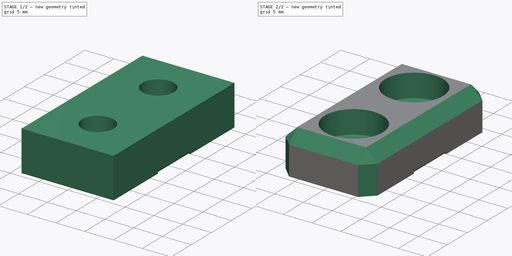
[diagram: build sequence overview — one tinted view per stage of 2, left to right]
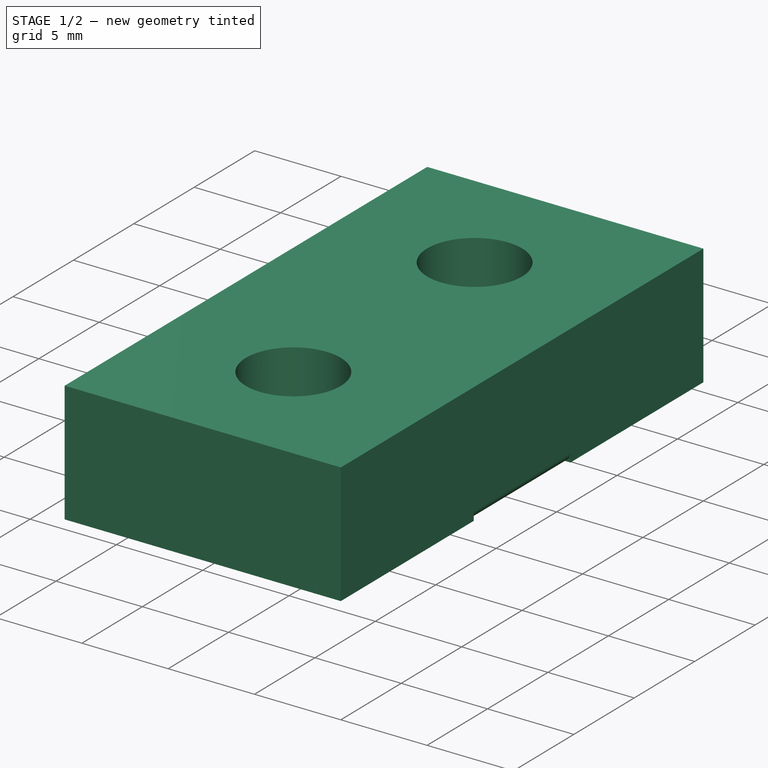
[diagram: stage 1 of 2 — iso view after this stage's code; geometry added in this stage tinted green]
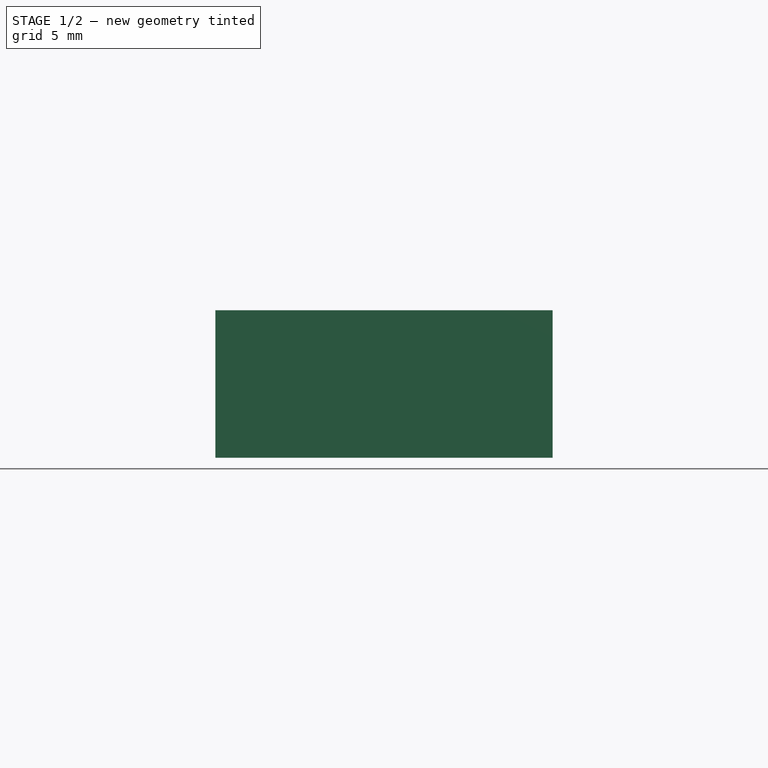
[diagram: stage 1 of 2 — front view after this stage's code; geometry added in this stage tinted green]
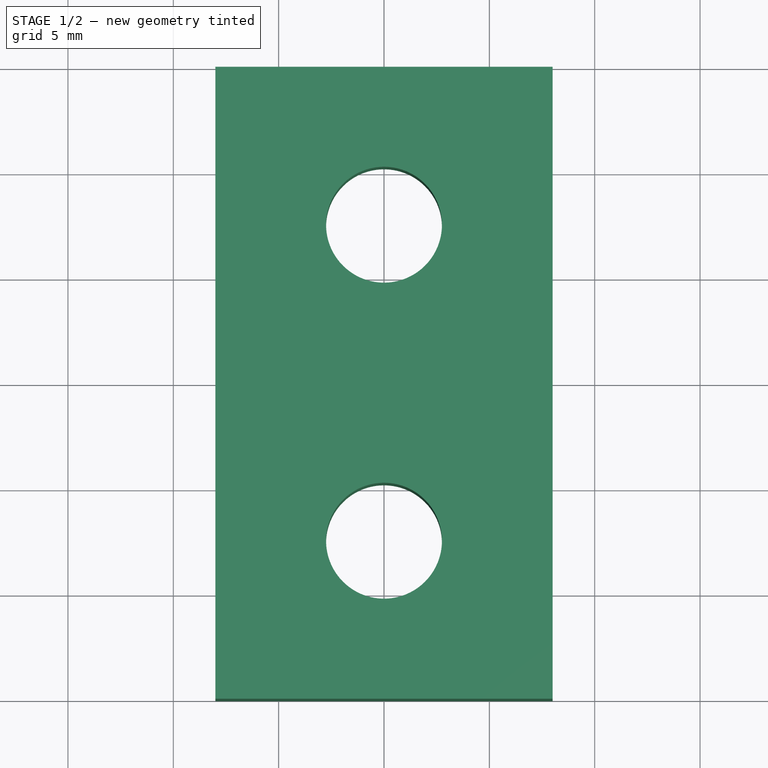
[diagram: stage 1 of 2 — top view after this stage's code; geometry added in this stage tinted green]
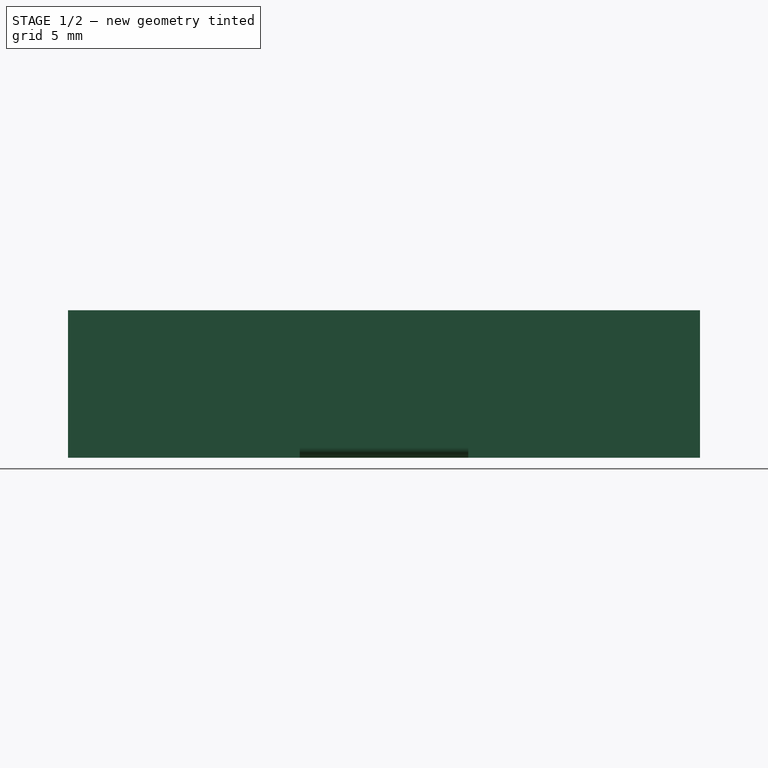
[diagram: stage 1 of 2 — right view after this stage's code; geometry added in this stage tinted green]
FCSTD DOCUMENT  (FreeCAD 0.19R24267 +148 (Git))
Label: belt-clamp
License: All rights reserved
LicenseURL: http://en.wikipedia.org/wiki/All_rights_reserved
objects: Sketcher::SketchObject×3, PartDesign::Pocket×2, PartDesign::Pad×1, PartDesign::Chamfer×1, PartDesign::Plane×1, PartDesign::Body×1
note: 13 computed .brp shape members not serialized (recipe doc carries the construction recipe); baked Part::Feature solids carry a one-line shape summary decoded from their .brp

FEATURE [Sketcher::SketchObject] Sketch
  FullyConstrained = true
  MapMode = 5
  Support = -> [XY_Plane]
  sketch-geometry (6):
    g0: LineSegment StartX=-8 StartY=15 StartZ=0 EndX=8 EndY=15 EndZ=0
    g1: LineSegment StartX=8 StartY=15 StartZ=0 EndX=8 EndY=-15 EndZ=0
    g2: LineSegment StartX=8 StartY=-15 StartZ=0 EndX=-8 EndY=-15 EndZ=0
    g3: LineSegment StartX=-8 StartY=-15 StartZ=0 EndX=-8 EndY=15 EndZ=0
    g4: Circle CenterX=0 CenterY=7.5 CenterZ=0 NormalX=0 NormalY=0 NormalZ=1 AngleXU=0 Radius=2.75
    g5: Circle CenterX=0 CenterY=-7.5 CenterZ=0 NormalX=0 NormalY=0 NormalZ=1 AngleXU=0 Radius=2.75
  constraints (15):
    c: Coincident(g0,g1)
    c: Coincident(g1,g2)
    c: Coincident(g2,g3)
    c: Coincident(g3,g0)
    c: Horizontal(g2)
    c: Vertical(g1)
    c: Symmetric(g0,g0,g-2)
    c: Symmetric(g0,g2,g-1)
    c: DistanceX(g0,g0) = 16
    c: PointOnObject(g4,g-2)
    c: DistanceY(g5,g4) = 15
    c: Diameter(g4) = 5.5
    c: Diameter(g5) = 5.5
    c: Symmetric(g4,g5,g-1)
    c: DistanceY(g3,g3) = 30
FEATURE [PartDesign::Pad] Pad
  AllowMultiFace = false
  Direction = (1,1,1)
  Length = 7
  Length2 = 100
  Profile = -> Sketch
  Type = 0
FEATURE [Sketcher::SketchObject] Sketch001
  FullyConstrained = true
  MapMode = 5
  Placement = pos=(0,0,0) rot=(1,0,0;1.5708rad)
  Support = -> [XZ_Plane]
  sketch-geometry (22):
    g0: ArcOfCircle CenterX=-7.5 CenterY=0.5 CenterZ=0 NormalX=0 NormalY=0 NormalZ=1 AngleXU=0 Radius=0.5 StartAngle=0 EndAngle=3.14159
    g1: ArcOfCircle CenterX=-6.5 CenterY=0.5 CenterZ=0 NormalX=0 NormalY=0 NormalZ=1 AngleXU=0 Radius=0.5 StartAngle=3.14159 EndAngle=6.28319
    g2: ArcOfCircle CenterX=-5.5 CenterY=0.5 CenterZ=0 NormalX=0 NormalY=0 NormalZ=1 AngleXU=0 Radius=0.5 StartAngle=0 EndAngle=3.14159
    g3: ArcOfCircle CenterX=-4.5 CenterY=0.5 CenterZ=0 NormalX=0 NormalY=0 NormalZ=1 AngleXU=0 Radius=0.5 StartAngle=3.14159 EndAngle=6.28319
    g4: ArcOfCircle CenterX=-3.5 CenterY=0.5 CenterZ=0 NormalX=0 NormalY=0 NormalZ=1 AngleXU=0 Radius=0.5 StartAngle=0 EndAngle=3.14159
    g5: ArcOfCircle CenterX=-2.5 CenterY=0.5 CenterZ=0 NormalX=0 NormalY=0 NormalZ=1 AngleXU=0 Radius=0.5 StartAngle=3.14159 EndAngle=6.28319
    g6: LineSegment StartX=-7.5 StartY=0.5 StartZ=0 EndX=0 EndY=0.5 EndZ=0
    g7: ArcOfCircle CenterX=-1.5 CenterY=0.5 CenterZ=0 NormalX=0 NormalY=0 NormalZ=1 AngleXU=0 Radius=0.5 StartAngle=0 EndAngle=3.14159
    g8: ArcOfCircle CenterX=-0.5 CenterY=0.5 CenterZ=0 NormalX=0 NormalY=0 NormalZ=1 AngleXU=0 Radius=0.5 StartAngle=3.14159 EndAngle=6.28319
    g9: LineSegment StartX=-8 StartY=0.5 StartZ=0 EndX=-8 EndY=-1.5 EndZ=0
    g10: LineSegment StartX=-8 StartY=-1.5 StartZ=0 EndX=0 EndY=-1.5 EndZ=0
    g11: LineSegment StartX=-6e-16 StartY=0.5 StartZ=0 EndX=7.5 EndY=0.5 EndZ=0
    g12: ArcOfCircle CenterX=0.5 CenterY=0.5 CenterZ=0 NormalX=0 NormalY=0 NormalZ=1 AngleXU=0 Radius=0.5 StartAngle=0 EndAngle=3.14159
    g13: ArcOfCircle CenterX=1.5 CenterY=0.5 CenterZ=0 NormalX=0 NormalY=0 NormalZ=1 AngleXU=0 Radius=0.5 StartAngle=3.14159 EndAngle=6.28319
    g14: ArcOfCircle CenterX=2.5 CenterY=0.5 CenterZ=0 NormalX=0 NormalY=0 NormalZ=1 AngleXU=0 Radius=0.5 StartAngle=0 EndAngle=3.14159
    g15: ArcOfCircle CenterX=3.5 CenterY=0.5 CenterZ=0 NormalX=0 NormalY=0 NormalZ=1 AngleXU=0 Radius=0.5 StartAngle=3.14159 EndAngle=6.28319
    g16: ArcOfCircle CenterX=4.5 CenterY=0.5 CenterZ=0 NormalX=0 NormalY=0 NormalZ=1 AngleXU=0 Radius=0.5 StartAngle=0 EndAngle=3.14159
    g17: ArcOfCircle CenterX=5.5 CenterY=0.5 CenterZ=0 NormalX=0 NormalY=0 NormalZ=1 AngleXU=0 Radius=0.5 StartAngle=3.14159 EndAngle=6.28319
    g18: ArcOfCircle CenterX=6.5 CenterY=0.5 CenterZ=0 NormalX=0 NormalY=0 NormalZ=1 AngleXU=0 Radius=0.5 StartAngle=0 EndAngle=3.14159
    g19: ArcOfCircle CenterX=7.5 CenterY=0.5 CenterZ=0 NormalX=0 NormalY=0 NormalZ=1 AngleXU=0 Radius=0.5 StartAngle=3.14159 EndAngle=6.28317
    g20: LineSegment StartX=8 StartY=0.499993 StartZ=0 EndX=8 EndY=-1.5 EndZ=0
    g21: LineSegment StartX=8 StartY=-1.5 StartZ=0 EndX=0 EndY=-1.5 EndZ=0
  constraints (81):
    c: Coincident(g1,g0)
    c: Coincident(g2,g1)
    c: Coincident(g3,g2)
    c: Coincident(g4,g3)
    c: Coincident(g5,g4)
    c: DistanceX(g0,g-1) = 7.5
    c: Coincident(g6,g0)
    c: PointOnObject(g6,g-2)
    c: Perpendicular(g-2,g6)
    c: DistanceY(g-1,g6) = 0.5
    c: PointOnObject(g1,g6)
    c: PointOnObject(g1,g6)
    c: PointOnObject(g2,g6)
    c: PointOnObject(g2,g6)
    c: PointOnObject(g3,g6)
    c: PointOnObject(g3,g6)
    c: PointOnObject(g4,g6)
    c: PointOnObject(g4,g6)
    c: PointOnObject(g5,g6)
    c: PointOnObject(g5,g6)
    c: PointOnObject(g0,g6)
    c: Diameter(g0) = 1
    c: Diameter(g1) = 1
    c: Diameter(g2) = 1
    c: Diameter(g3) = 1
    c: Diameter(g4) = 1
    c: Diameter(g5) = 1
    c: PointOnObject(g7,g6)
    c: Coincident(g7,g5)
    c: PointOnObject(g7,g6)
    c: PointOnObject(g8,g6)
    c: Coincident(g8,g7)
    c: PointOnObject(g8,g6)
    c: Diameter(g7) = 1
    c: Diameter(g8) = 1
    c: Coincident(g0,g9)
    c: Vertical(g9)
    c: Tangent(g0,g9)
    c: DistanceY(g9,g9) = 2
    c: Coincident(g10,g9)
    c: PointOnObject(g10,g-2)
    c: Horizontal(g10)
    c: Coincident(g11,g8)
    c: Horizontal(g11)
    c: DistanceX(g11,g11) = 7.5
    c: PointOnObject(g12,g11)
    c: Coincident(g12,g8)
    c: PointOnObject(g12,g11)
    c: PointOnObject(g13,g11)
    c: Coincident(g13,g12)
    c: PointOnObject(g13,g11)
    c: PointOnObject(g14,g11)
    c: Coincident(g14,g13)
    c: PointOnObject(g14,g11)
    c: PointOnObject(g15,g11)
    c: Coincident(g15,g14)
    c: PointOnObject(g15,g11)
    c: PointOnObject(g16,g11)
    c: Coincident(g16,g15)
    c: PointOnObject(g16,g11)
    c: PointOnObject(g17,g11)
    c: Coincident(g17,g16)
    c: PointOnObject(g17,g11)
    c: Diameter(g12) = 1
    c: Diameter(g13) = 1
    c: Diameter(g14) = 1
    c: Diameter(g15) = 1
    c: Diameter(g16) = 1
    c: Diameter(g17) = 1
    c: PointOnObject(g18,g11)
    c: Coincident(g18,g17)
    c: PointOnObject(g18,g11)
    c: Diameter(g18) = 1
    c: Coincident(g19,g11)
    c: Coincident(g19,g18)
    c: Coincident(g19,g20)
    c: Coincident(g20,g21)
    c: Coincident(g21,g10)
    c: Horizontal(g21)
    c: Vertical(g20)
    c: Tangent(g19,g20)
FEATURE [PartDesign::Pocket] Pocket
  AllowMultiFace = false
  BaseFeature = -> Pad
  Length = 4
  Length2 = 4
  Profile = -> Sketch001
  Type = 4
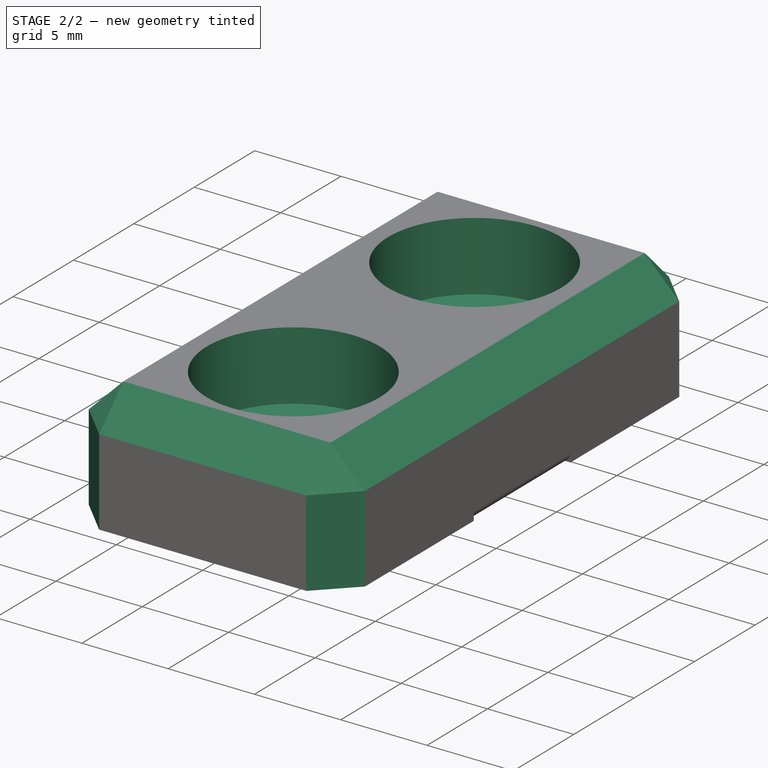
[diagram: stage 2 of 2 — iso view after this stage's code; geometry added in this stage tinted green]
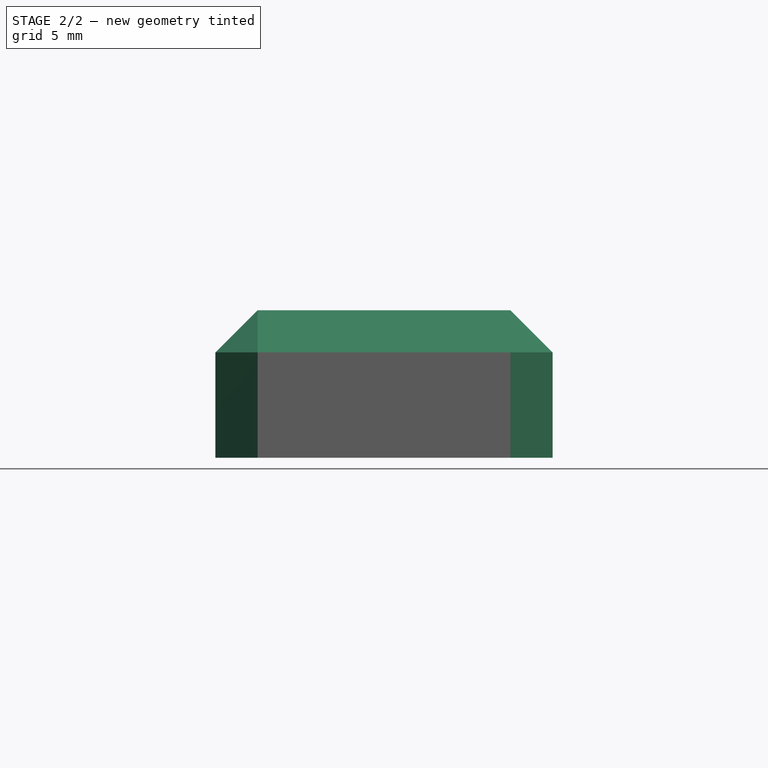
[diagram: stage 2 of 2 — front view after this stage's code; geometry added in this stage tinted green]
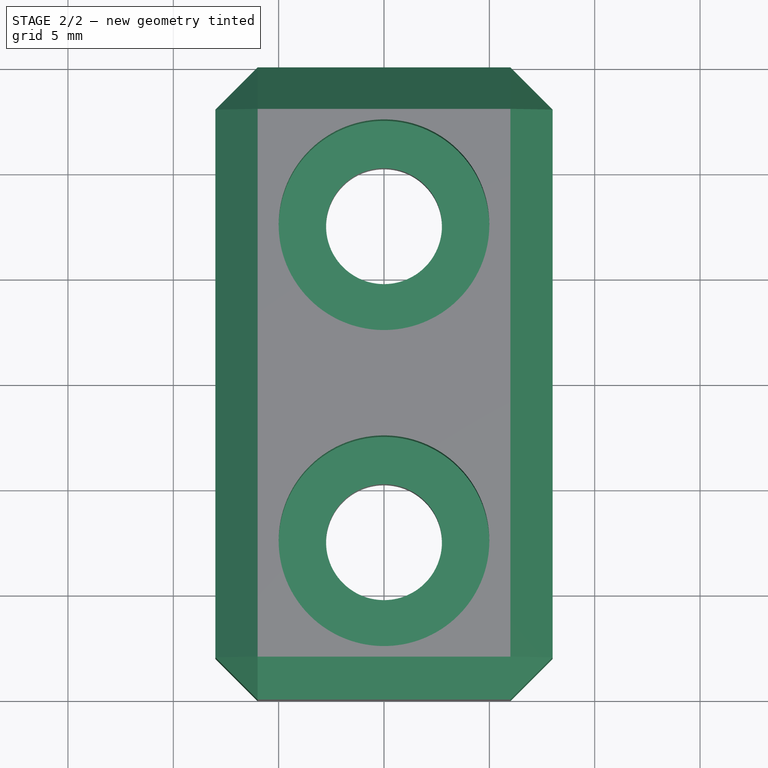
[diagram: stage 2 of 2 — top view after this stage's code; geometry added in this stage tinted green]
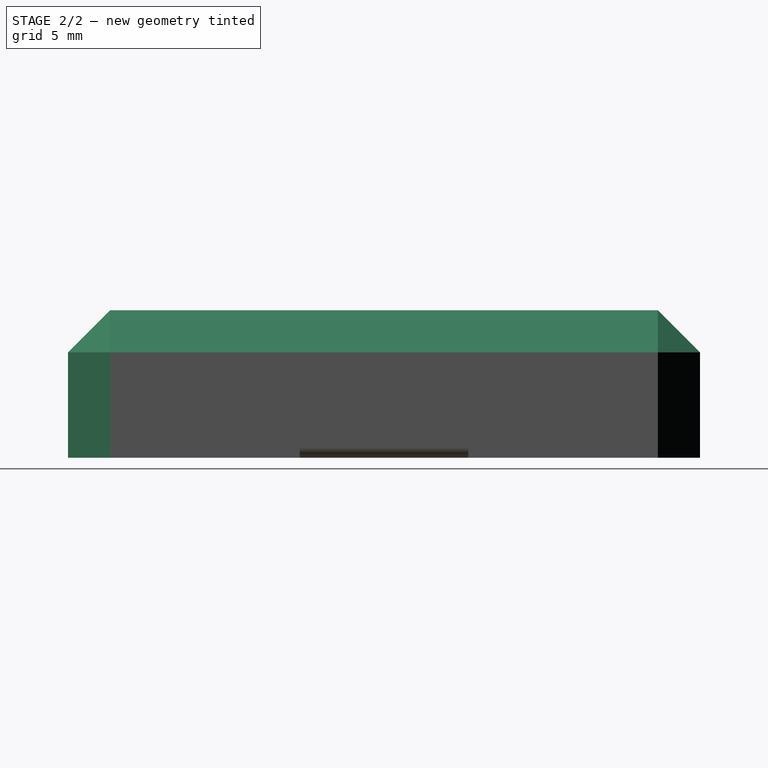
[diagram: stage 2 of 2 — right view after this stage's code; geometry added in this stage tinted green]
FEATURE [PartDesign::Chamfer] Chamfer
  Angle = 45
  Base = -> Pocket [Edge2,Edge1,Edge11,Edge10,Edge4,Edge17,Edge29,Edge18]
  BaseFeature = -> Pocket
  ChamferType = 0
  FlipDirection = false
  Size = 2
  Size2 = 1
  SupportTransform = false
FEATURE [PartDesign::Plane] DatumPlane
  Length = 60
  MapMode = 5
  Placement = pos=(0,0,7) rot=(0,0,1;0rad)
  ResizeMode = 0
  Support = -> [Chamfer]
  Width = 60
FEATURE [Sketcher::SketchObject] Sketch002
  FullyConstrained = true
  MapMode = 5
  Placement = pos=(0,0,7) rot=(0,0,1;0rad)
  Support = -> [DatumPlane]
  sketch-geometry (2):
    g0: Circle CenterX=0 CenterY=7.5 CenterZ=0 NormalX=0 NormalY=0 NormalZ=1 AngleXU=0 Radius=5
    g1: Circle CenterX=0 CenterY=-7.5 CenterZ=0 NormalX=0 NormalY=0 NormalZ=1 AngleXU=0 Radius=5
  constraints (6):
    c: PointOnObject(g0,g-2)
    c: PointOnObject(g1,g-2)
    c: DistanceY(g-1,g0) = 7.5
    c: DistanceY(g1,g-1) = 7.5
    c: Diameter(g0) = 10
    c: Diameter(g1) = 10
FEATURE [PartDesign::Pocket] Pocket001
  AllowMultiFace = false
  BaseFeature = -> Chamfer
  Length = 4
  Length2 = 100
  Profile = -> Sketch002
  Type = 0
FEATURE [PartDesign::Body] Body
  Group = -> [Sketch,Pad,Sketch001,Pocket,Chamfer,DatumPlane,Sketch002,Pocket001]
  Origin = -> Origin
  Tip = -> Pocket001
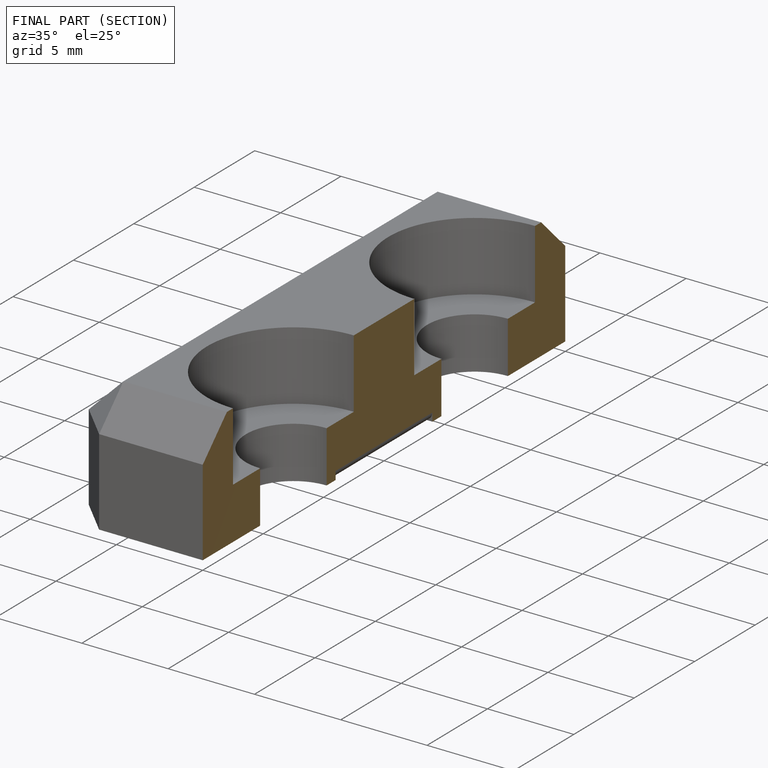
[diagram: finished part — half-section view (interior)]
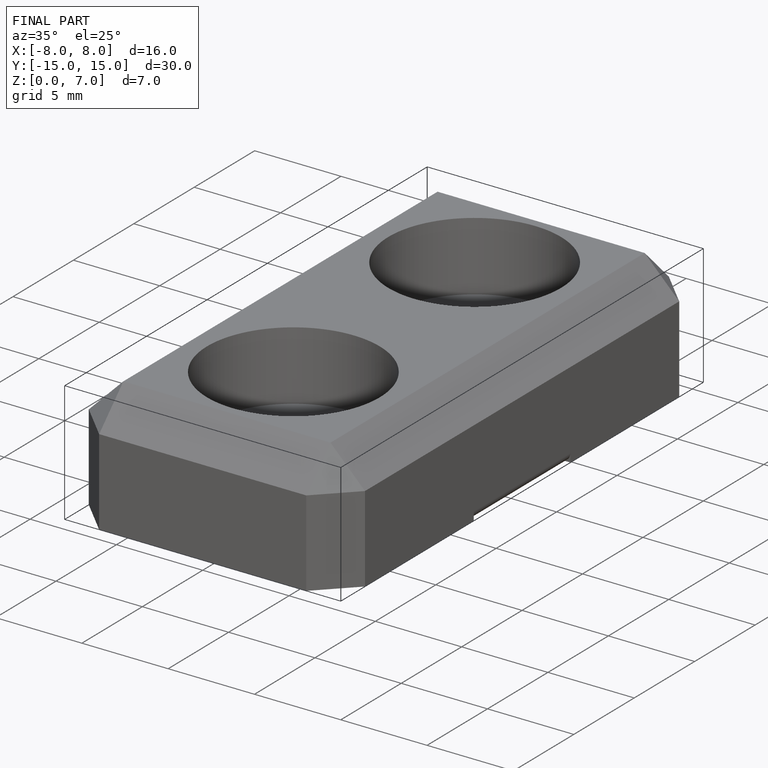
[diagram: finished part — iso view with bounding-box wireframe]
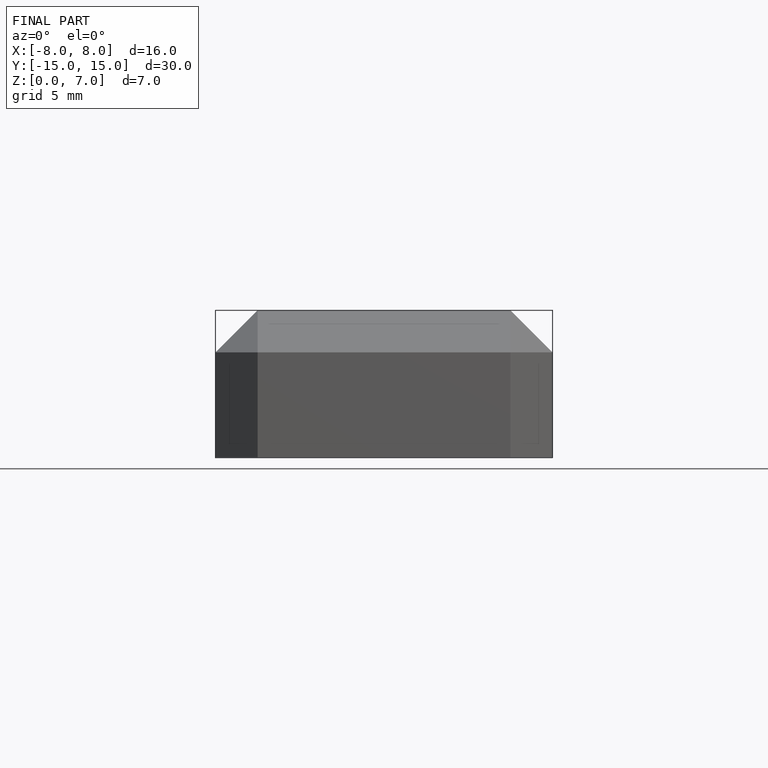
[diagram: finished part — front view with bounding-box wireframe]
